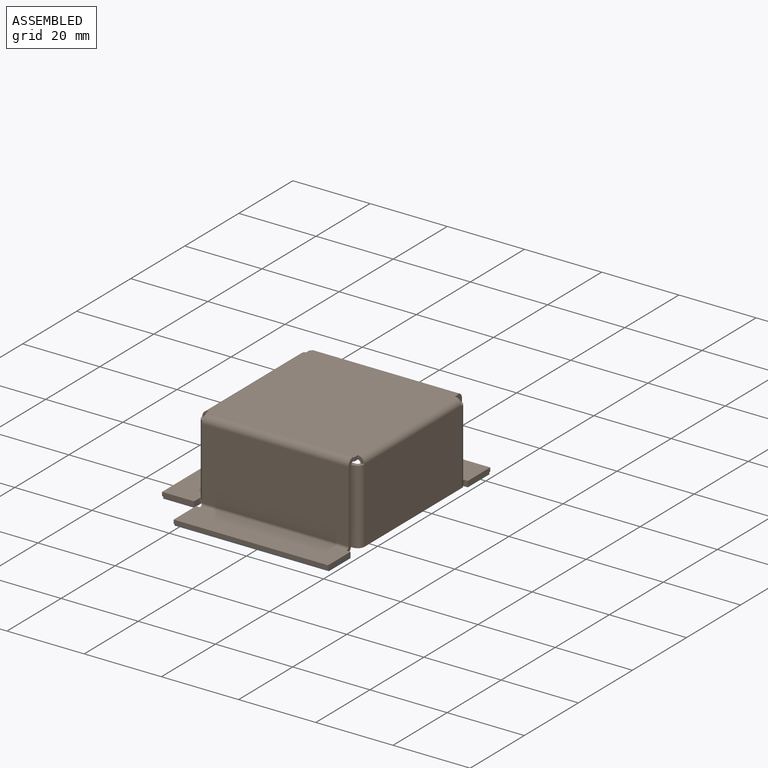
[diagram: assembled view]
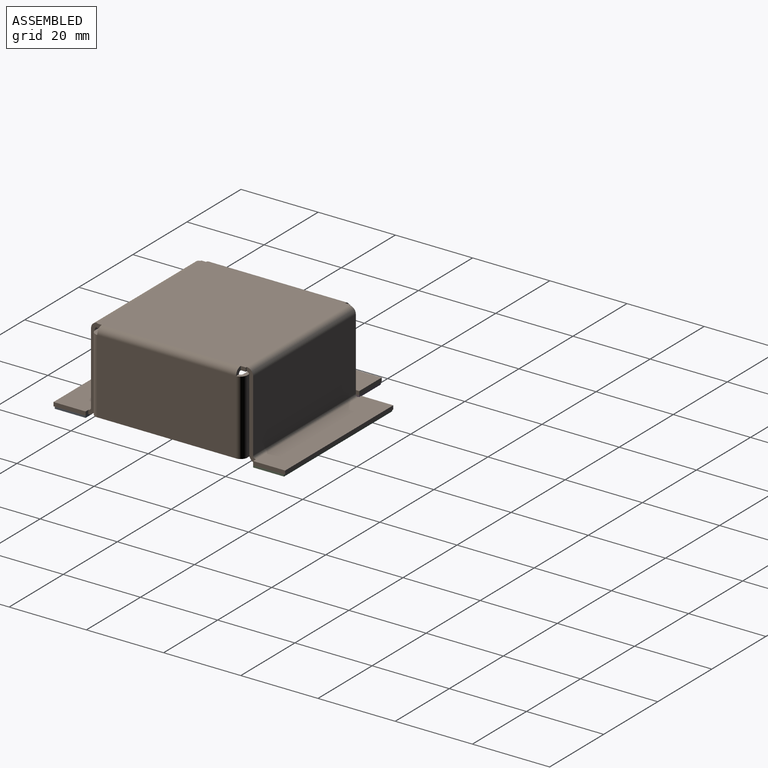
[diagram: assembled view, second angle]
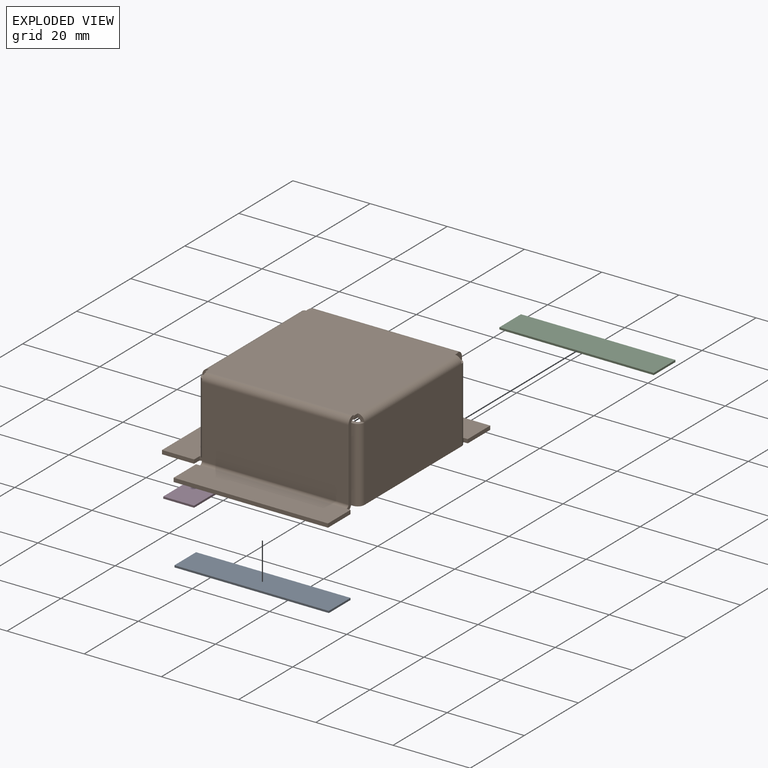
[diagram: exploded view]
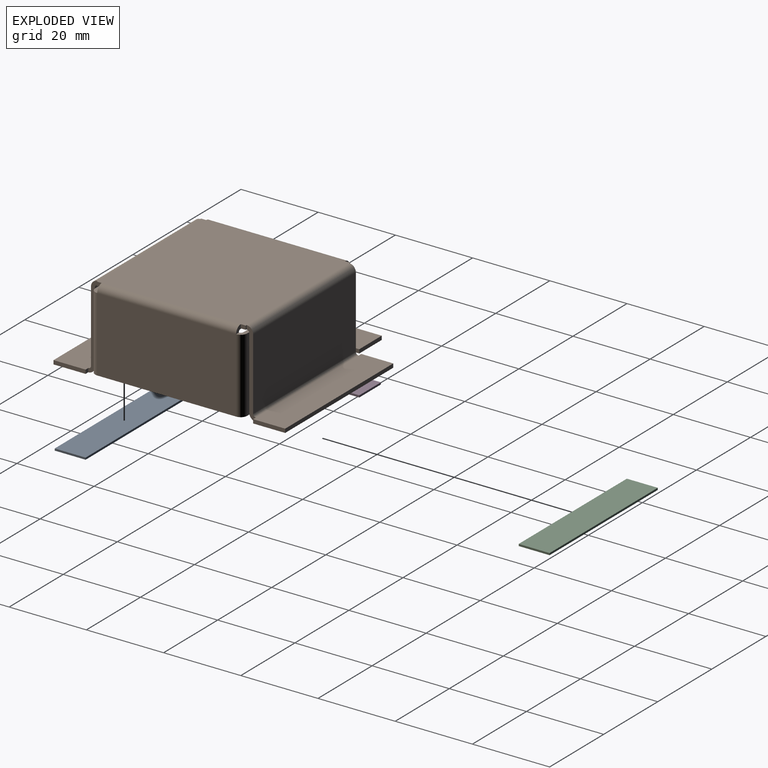
[diagram: exploded view, second angle]
ASSEMBLY  parts=4 mates=9
PART A: 6 faces, bbox 40x8x0.5 mm
  f0: plane 40x0.5mm, normal (0,1,0), area 20mm2, adj f1,f3,f4,f5
  f1: plane 8x0.5mm, normal (-1,0,0), area 4mm2, adj f0,f2,f4,f5
  f2: plane 40x0.5mm, normal (0,-1,0), area 20mm2, adj f1,f3,f4,f5
  f3: plane 8x0.5mm, normal (1,0,0), area 4mm2, adj f0,f2,f4,f5
  f4: plane 40x8mm, normal (0,0,1), area 320mm2, adj f0,f1,f2,f3
  f5: plane 40x8mm, normal (0,0,-1), area 320mm2, adj f0,f1,f2,f3
PART B: 110 faces, bbox 51x60x22 mm
  f0: plane 18.6x1mm, normal (1,0,0), area 18.6mm2, adj f2,f3,f96,f106
  f1: plane 18.6x1mm, normal (-1,0,0), area 18.6mm2, adj f2,f3,f95,f107
  f2: plane 38x18.6mm, normal (0,-1,0), area 706.8mm2, adj f0,f1,f97,f109
  f3: plane 38x18.6mm, normal (0,1,0), area 706.8mm2, adj f0,f1,f98,f108
  f4: plane 1x0.3mm, normal (0,-1,0), area 0.3mm2, adj f9,f12,f13,f95
  f5: plane 1.3x1mm, normal (-1,0,0), area 1.3mm2, adj f8,f12,f13,f91
  f6: plane 1.3x1mm, normal (1,0,0), area 1.3mm2, adj f10,f12,f13,f55
  f7: plane 1x0.3mm, normal (0,1,0), area 0.3mm2, adj f11,f12,f13,f30
  f8: plane 1x0.3mm, normal (0,1,0), area 0.3mm2, adj f5,f12,f13,f29
  f9: plane 1.3x1mm, normal (-1,0,0), area 1.3mm2, adj f4,f12,f13,f92
  f10: plane 1x0.3mm, normal (0,-1,0), area 0.3mm2, adj f6,f12,f13,f96
  f11: plane 1.3x1mm, normal (1,0,0), area 1.3mm2, adj f7,f12,f13,f54
  f12: plane 38.6x38.6mm, normal (0,0,1), area 1490mm2, adj f4,f5,f6,f7,f8,f9,f10,f11
  f13: plane 38.6x38.6mm, normal (0,0,-1), area 1490mm2, adj f4,f5,f6,f7,f8,f9,f10,f11
  f14: plane 18.6x1mm, normal (-1,0,0), area 18.6mm2, adj f16,f17,f25,f29
  f15: plane 18.6x1mm, normal (1,0,0), area 18.6mm2, adj f16,f17,f26,f30
  f16: plane 38x18.6mm, normal (0,1,0), area 706.8mm2, adj f14,f15,f28,f31
  f17: plane 38x18.6mm, normal (0,-1,0), area 706.8mm2, adj f14,f15,f27,f32
  f18: plane 1x1mm, normal (0,-1,0), area 1mm2, adj f19,f23,f24,f26
  f19: plane 8.3x1mm, normal (1,0,0), area 8.3mm2, adj f18,f20,f23,f24
  f20: plane 40x1mm, normal (0,1,0), area 40mm2, adj f19,f21,f23,f24
  f21: plane 8.3x1mm, normal (-1,0,0), area 8.3mm2, adj f20,f22,f23,f24
  f22: plane 1x1mm, normal (0,-1,0), area 1mm2, adj f21,f23,f24,f25
  f23: plane 40x8.3mm, normal (0,0,1), area 332mm2, adj f18,f19,f20,f21,f22,f28
  f24: plane 40x8.3mm, normal (0,0,-1), area 332mm2, adj f18,f19,f20,f21,f22,f27
  f25: plane 1.7x1.7mm, normal (-1,0,0), area 1.9mm2, adj f14,f22,f27,f28
  f26: plane 1.7x1.7mm, normal (1,0,0), area 1.9mm2, adj f15,f18,f27,f28
  f27: cylinder r=1.7mm len=38mm, axis (-1,0,0), area 101.5mm2, adj f17,f24,f25,f26
  f28: cylinder r=0.7mm len=38mm, axis (-1,0,0), area 41.8mm2, adj f16,f23,f25,f26
  f29: plane 1.7x1.7mm, normal (-1,0,0), area 1.9mm2, adj f8,f14,f31,f32
  f30: plane 1.7x1.7mm, normal (1,0,0), area 1.9mm2, adj f7,f15,f31,f32
  f31: cylinder r=1.7mm len=38mm, axis (-1,0,0), area 101.5mm2, adj f12,f16,f29,f30
  f32: cylinder r=0.7mm len=38mm, axis (-1,0,0), area 41.8mm2, adj f13,f17,f29,f30
  f33: plane 36x19.3mm, normal (-1,0,0), area 694.8mm2, adj f35,f44,f53,f57
  f34: plane 36x19.3mm, normal (1,0,0), area 694.8mm2, adj f35,f43,f52,f56
  f35: plane 36x1mm, normal (0,0,-1), area 36mm2, adj f33,f34,f41,f51
  f36: plane 19.3x1mm, normal (-1,0,0), area 19.3mm2, adj f37,f38,f39,f40
  f37: plane 16.3x1mm, normal (0,0,-1), area 16.3mm2, adj f36,f39,f40,f41
  f38: plane 16.3x1mm, normal (0,0,1), area 16.3mm2, adj f36,f39,f40,f42
  f39: plane 19.3x16.3mm, normal (0,-1,0), area 314.6mm2, adj f36,f37,f38,f43
  f40: plane 19.3x16.3mm, normal (0,1,0), area 314.6mm2, adj f36,f37,f38,f44
  f41: plane 1.7x1.7mm, normal (0,0,-1), area 1.9mm2, adj f35,f37,f43,f44
  f42: plane 1.7x1.7mm, normal (0,0,1), area 1.9mm2, adj f38,f43,f44,f55
  f43: cylinder r=1.7mm len=19.3mm, axis (0,0,-1), area 51.5mm2, adj f34,f39,f41,f42
  f44: cylinder r=0.7mm len=19.3mm, axis (0,0,-1), area 21.2mm2, adj f33,f40,f41,f42
  f45: plane 19.3x1mm, normal (-1,0,0), area 19.3mm2, adj f46,f47,f48,f49
  f46: plane 16.3x1mm, normal (0,0,1), area 16.3mm2, adj f45,f48,f49,f50
  f47: plane 16.3x1mm, normal (0,0,-1), area 16.3mm2, adj f45,f48,f49,f51
  f48: plane 19.3x16.3mm, normal (0,1,0), area 314.6mm2, adj f45,f46,f47,f52
  f49: plane 19.3x16.3mm, normal (0,-1,0), area 314.6mm2, adj f45,f46,f47,f53
  f50: plane 1.7x1.7mm, normal (0,0,1), area 1.9mm2, adj f46,f52,f53,f54
  f51: plane 1.7x1.7mm, normal (0,0,-1), area 1.9mm2, adj f35,f47,f52,f53
  f52: cylinder r=1.7mm len=19.3mm, axis (0,0,1), area 51.5mm2, adj f34,f48,f50,f51
  f53: cylinder r=0.7mm len=19.3mm, axis (0,0,1), area 21.2mm2, adj f33,f49,f50,f51
  f54: plane 1.7x1.7mm, normal (0,1,0), area 1.9mm2, adj f11,f50,f56,f57
  f55: plane 1.7x1.7mm, normal (0,-1,0), area 1.9mm2, adj f6,f42,f56,f57
  f56: cylinder r=1.7mm len=36mm, axis (0,1,0), area 96.1mm2, adj f12,f34,f54,f55
  f57: cylinder r=0.7mm len=36mm, axis (0,1,0), area 39.6mm2, adj f13,f33,f54,f55
  f58: plane 36x18.6mm, normal (1,0,0), area 669.6mm2, adj f69,f79,f89,f94
  f59: plane 36x18.6mm, normal (-1,0,0), area 669.6mm2, adj f68,f78,f90,f93
  f60: plane 19.3x1mm, normal (1,0,0), area 19.3mm2, adj f61,f63,f64,f65
  f61: plane 16.3x1mm, normal (0,0,1), area 16.3mm2, adj f60,f64,f65,f66
  f62: plane 1x0.7mm, normal (-1,0,0), area 0.7mm2, adj f63,f64,f65,f67
  f63: plane 16.3x1mm, normal (0,0,-1), area 16.3mm2, adj f60,f62,f64,f65
  f64: plane 19.3x16.3mm, normal (0,-1,0), area 314.6mm2, adj f60,f61,f62,f63,f68
  f65: plane 19.3x16.3mm, normal (0,1,0), area 314.6mm2, adj f60,f61,f62,f63,f69
  f66: plane 1.7x1.7mm, normal (0,0,1), area 1.9mm2, adj f61,f68,f69,f92
  f67: plane 1.7x1.7mm, normal (0,0,-1), area 1.9mm2, adj f62,f68,f69,f87
  f68: cylinder r=1.7mm len=18.6mm, axis (0,0,1), area 49.7mm2, adj f59,f64,f66,f67
  f69: cylinder r=0.7mm len=18.6mm, axis (0,0,1), area 20.5mm2, adj f58,f65,f66,f67
  f70: plane 1x0.7mm, normal (-1,0,0), area 0.7mm2, adj f72,f74,f75,f76
  f71: plane 19.3x1mm, normal (1,0,0), area 19.3mm2, adj f72,f73,f74,f75
  f72: plane 16.3x1mm, normal (0,0,-1), area 16.3mm2, adj f70,f71,f74,f75
  f73: plane 16.3x1mm, normal (0,0,1), area 16.3mm2, adj f71,f74,f75,f77
  f74: plane 19.3x16.3mm, normal (0,1,0), area 314.6mm2, adj f70,f71,f72,f73,f78
  f75: plane 19.3x16.3mm, normal (0,-1,0), area 314.6mm2, adj f70,f71,f72,f73,f79
  f76: plane 1.7x1.7mm, normal (0,0,-1), area 1.9mm2, adj f70,f78,f79,f88
  f77: plane 1.7x1.7mm, normal (0,0,1), area 1.9mm2, adj f73,f78,f79,f91
  f78: cylinder r=1.7mm len=18.6mm, axis (0,0,-1), area 49.7mm2, adj f59,f74,f76,f77
  f79: cylinder r=0.7mm len=18.6mm, axis (0,0,-1), area 20.5mm2, adj f58,f75,f76,f77
  f80: plane 2x1mm, normal (1,0,0), area 2mm2, adj f81,f85,f86,f88
  f81: plane 8.3x1mm, normal (0,1,0), area 8.3mm2, adj f80,f82,f85,f86
  f82: plane 40x1mm, normal (-1,0,0), area 40mm2, adj f81,f83,f85,f86
  f83: plane 8.3x1mm, normal (0,-1,0), area 8.3mm2, adj f82,f84,f85,f86
  f84: plane 2x1mm, normal (1,0,0), area 2mm2, adj f83,f85,f86,f87
  f85: plane 40x8.3mm, normal (0,0,1), area 332mm2, adj f80,f81,f82,f83,f84,f90
  f86: plane 40x8.3mm, normal (0,0,-1), area 332mm2, adj f80,f81,f82,f83,f84,f89
  f87: plane 1.7x1.7mm, normal (0,-1,0), area 1.9mm2, adj f67,f84,f89,f90
  f88: plane 1.7x1.7mm, normal (0,1,0), area 1.9mm2, adj f76,f80,f89,f90
  f89: cylinder r=1.7mm len=36mm, axis (0,-1,0), area 96.1mm2, adj f58,f86,f87,f88
  f90: cylinder r=0.7mm len=36mm, axis (0,-1,0), area 39.6mm2, adj f59,f85,f87,f88
  f91: plane 1.7x1.7mm, normal (0,1,0), area 1.9mm2, adj f5,f77,f93,f94
  f92: plane 1.7x1.7mm, normal (0,-1,0), area 1.9mm2, adj f9,f66,f93,f94
  f93: cylinder r=1.7mm len=36mm, axis (0,1,0), area 96.1mm2, adj f12,f59,f91,f92
  f94: cylinder r=0.7mm len=36mm, axis (0,1,0), area 39.6mm2, adj f13,f58,f91,f92
  f95: plane 1.7x1.7mm, normal (-1,0,0), area 1.9mm2, adj f1,f4,f97,f98
  f96: plane 1.7x1.7mm, normal (1,0,0), area 1.9mm2, adj f0,f10,f97,f98
  f97: cylinder r=1.7mm len=38mm, axis (-1,0,0), area 101.5mm2, adj f2,f12,f95,f96
  f98: cylinder r=0.7mm len=38mm, axis (-1,0,0), area 41.8mm2, adj f3,f13,f95,f96
  f99: plane 1x1mm, normal (0,1,0), area 1mm2, adj f100,f104,f105,f107
  f100: plane 8.3x1mm, normal (-1,0,0), area 8.3mm2, adj f99,f101,f104,f105
  f101: plane 40x1mm, normal (0,-1,0), area 40mm2, adj f100,f102,f104,f105
  f102: plane 8.3x1mm, normal (1,0,0), area 8.3mm2, adj f101,f103,f104,f105
  f103: plane 1x1mm, normal (0,1,0), area 1mm2, adj f102,f104,f105,f106
  f104: plane 40x8.3mm, normal (0,0,1), area 332mm2, adj f99,f100,f101,f102,f103,f109
  f105: plane 40x8.3mm, normal (0,0,-1), area 332mm2, adj f99,f100,f101,f102,f103,f108
  f106: plane 1.7x1.7mm, normal (1,0,0), area 1.9mm2, adj f0,f103,f108,f109
  f107: plane 1.7x1.7mm, normal (-1,0,0), area 1.9mm2, adj f1,f99,f108,f109
  f108: cylinder r=1.7mm len=38mm, axis (1,0,0), area 101.5mm2, adj f3,f105,f106,f107
  f109: cylinder r=0.7mm len=38mm, axis (1,0,0), area 41.8mm2, adj f2,f104,f106,f107
PART C: same geometry as A
PART D: same geometry as A
PLACE A t=(-27.71,-31.6,1.71)mm
PLACE B t=(-27.71,-5.9,3.21)mm fixed
PLACE C t=(-27.71,19.8,1.71)mm
PLACE D rot(axis=(0,0,-1),90deg) t=(-53.41,-5.9,1.71)mm
MATE planar B.f84 <-> D.f0  axis (1,0,0) through (-49.41,-24.9,2.71)mm
MATE planar B.f18 <-> C.f2  axis (0,-1,0) through (-8.21,15.8,2.71)mm
MATE planar B.f24 <-> C.f4  axis (0,0,-1) through (-27.71,19.95,2.21)mm
MATE planar B.f105 <-> A.f4  axis (0,0,-1) through (-27.71,-31.75,2.21)mm
MATE planar C.f3 <-> B.f19  axis (1,0,0) through (-7.71,19.8,1.96)mm
MATE planar B.f100 <-> A.f1  axis (-1,0,0) through (-47.71,-31.75,2.71)mm
MATE planar B.f86 <-> D.f4  axis (0,0,-1) through (-53.56,-5.9,2.21)mm
MATE planar B.f99 <-> A.f0  axis (0,1,0) through (-47.21,-27.6,2.71)mm
MATE planar B.f83 <-> D.f3  axis (0,-1,0) through (-53.56,-25.9,3.21)mm
